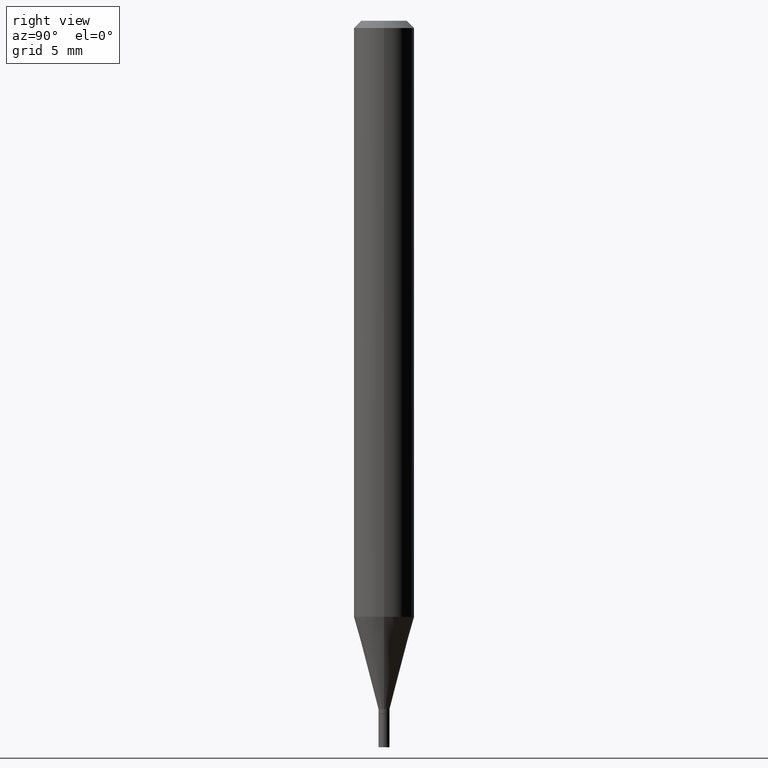
[diagram: clean part render]
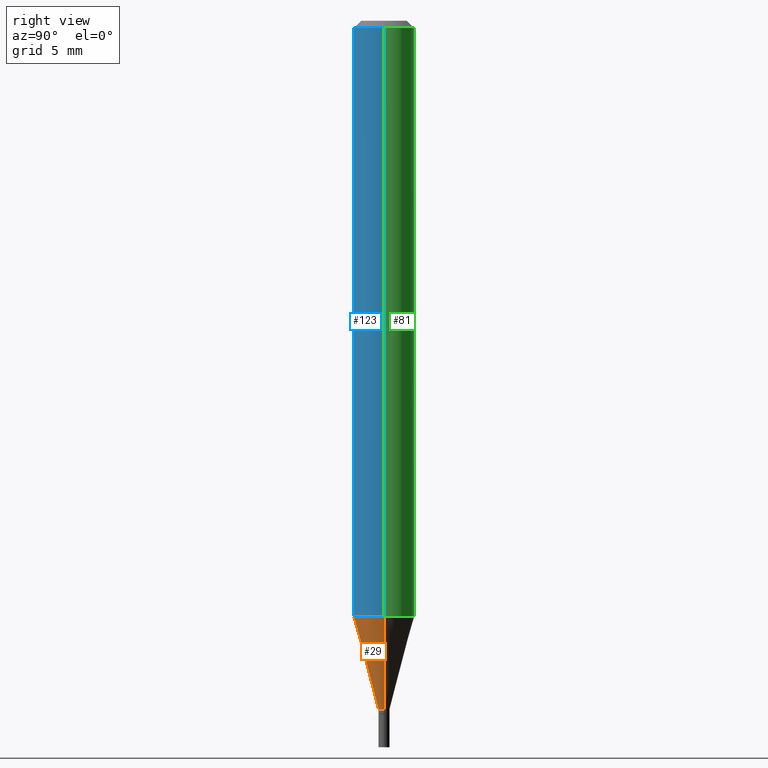
[diagram: same view with three faces highlighted in distinct colors, each labeled with its STEP entity id]
A machine part, right view with three faces highlighted in distinct colors.
Their STEP definitions:

[orange] entity #29 — the highlighted conical surface has half-angle 15 deg.
#6 = DIRECTION ( 'NONE',  ( -2.445468806185136597E-29, 3.491481338843145583E-15, 1.000000000000000000 ) ) ;
#7 = LINE ( 'NONE', #217, #105 ) ;
#29 = ADVANCED_FACE ( 'NONE', ( #364 ), #412, .T. ) ;
#44 = EDGE_CURVE ( 'NONE', #169, #85, #225, .T. ) ;
#65 = DIRECTION ( 'NONE',  ( -2.445468806185136597E-29, 3.491481338843145583E-15, 1.000000000000000000 ) ) ;
#68 = VECTOR ( 'NONE', #271, 39.37007874015748143 ) ;
#85 = VERTEX_POINT ( 'NONE', #255 ) ;
#92 = EDGE_CURVE ( 'NONE', #131, #169, #7, .T. ) ;
#95 = ORIENTED_EDGE ( 'NONE', *, *, #362, .T. ) ;
#105 = VECTOR ( 'NONE', #318, 39.37007874015748143 ) ;
#119 = DIRECTION ( 'NONE',  ( 1.000000000000000000, -6.982962677686254878E-15, 0.000000000000000000 ) ) ;
#122 = CIRCLE ( 'NONE', #260, 0.01149999999999992001 ) ;
#131 = VERTEX_POINT ( 'NONE', #296 ) ;
#156 = LINE ( 'NONE', #199, #68 ) ;
#169 = VERTEX_POINT ( 'NONE', #446 ) ;
#199 = CARTESIAN_POINT ( 'NONE',  ( 0.01149999999999992001, -5.041699053289501888E-15, -1.421000000000000263 ) ) ;
#202 = CARTESIAN_POINT ( 'NONE',  ( 3.009553868105685827E-29, -4.296845309233809826E-15, -1.230665408813987893 ) ) ;
#217 = CARTESIAN_POINT ( 'NONE',  ( -0.01149999999999992001, -4.879682567883699947E-15, -1.421000000000000263 ) ) ;
#221 = CARTESIAN_POINT ( 'NONE',  ( 3.475011173589079817E-29, -4.961394982496111147E-15, -1.421000000000000263 ) ) ;
#225 = CIRCLE ( 'NONE', #259, 0.06250000000000000000 ) ;
#255 = CARTESIAN_POINT ( 'NONE',  ( 0.06249999999999997918, -4.733280476589200707E-15, -1.230665408813987893 ) ) ;
#259 = AXIS2_PLACEMENT_3D ( 'NONE', #202, #65, #316 ) ;
#260 = AXIS2_PLACEMENT_3D ( 'NONE', #221, #6, #119 ) ;
#271 = DIRECTION ( 'NONE',  ( 0.2588190451025216277, 1.565188264969619995E-15, 0.9659258262890679791 ) ) ;
#296 = CARTESIAN_POINT ( 'NONE',  ( -0.01149999999999992001, -4.366219333633723973E-15, -1.421000000000000263 ) ) ;
#310 = EDGE_LOOP ( 'NONE', ( #349, #95, #394, #333 ) ) ;
#316 = DIRECTION ( 'NONE',  ( 1.000000000000000000, -6.982962677686262766E-15, 0.000000000000000000 ) ) ;
#318 = DIRECTION ( 'NONE',  ( -0.2588190451025216277, 5.211531920934551831E-15, 0.9659258262890679791 ) ) ;
#333 = ORIENTED_EDGE ( 'NONE', *, *, #44, .F. ) ;
#335 = CARTESIAN_POINT ( 'NONE',  ( 3.475011173589079817E-29, -4.961394982496111147E-15, -1.421000000000000263 ) ) ;
#349 = ORIENTED_EDGE ( 'NONE', *, *, #92, .F. ) ;
#359 = DIRECTION ( 'NONE',  ( 1.000000000000000000, -6.982962677686254878E-15, 0.000000000000000000 ) ) ;
#362 = EDGE_CURVE ( 'NONE', #131, #417, #122, .T. ) ;
#364 = FACE_OUTER_BOUND ( 'NONE', #310, .T. ) ;
#370 = AXIS2_PLACEMENT_3D ( 'NONE', #335, #390, #359 ) ;
#390 = DIRECTION ( 'NONE',  ( -2.445468806185136597E-29, 3.491481338843145583E-15, 1.000000000000000000 ) ) ;
#394 = ORIENTED_EDGE ( 'NONE', *, *, #440, .T. ) ;
#412 = CONICAL_SURFACE ( 'NONE', #370, 0.01149999999999992001, 0.2617993877991502960 ) ;
#417 = VERTEX_POINT ( 'NONE', #445 ) ;
#440 = EDGE_CURVE ( 'NONE', #417, #85, #156, .T. ) ;
#445 = CARTESIAN_POINT ( 'NONE',  ( 0.01149999999999992001, -5.041699053289501888E-15, -1.421000000000000263 ) ) ;
#446 = CARTESIAN_POINT ( 'NONE',  ( -0.06249999999999997918, -3.852756099383747210E-15, -1.230665408813987893 ) ) ;

[blue] entity #123 — the highlighted cylindrical surface (edge-blend (fillet) strip) has radius 1.5875 mm, axis along (-0, 0, 1).
#21 = EDGE_CURVE ( 'NONE', #85, #358, #251, .T. ) ;
#25 = ORIENTED_EDGE ( 'NONE', *, *, #419, .F. ) ;
#27 = AXIS2_PLACEMENT_3D ( 'NONE', #40, #436, #314 ) ;
#31 = DIRECTION ( 'NONE',  ( -2.445468806185136877E-29, 3.491481338843145188E-15, 1.000000000000000000 ) ) ;
#38 = LINE ( 'NONE', #262, #420 ) ;
#40 = CARTESIAN_POINT ( 'NONE',  ( 0.000000000000000000, 0.000000000000000000, 0.000000000000000000 ) ) ;
#43 = CYLINDRICAL_SURFACE ( 'NONE', #27, 0.06250000000000000000 ) ;
#44 = EDGE_CURVE ( 'NONE', #169, #85, #225, .T. ) ;
#58 = CIRCLE ( 'NONE', #312, 0.06250000000000000000 ) ;
#65 = DIRECTION ( 'NONE',  ( -2.445468806185136597E-29, 3.491481338843145583E-15, 1.000000000000000000 ) ) ;
#73 = DIRECTION ( 'NONE',  ( -2.445468806185136877E-29, 3.491481338843145188E-15, 1.000000000000000000 ) ) ;
#85 = VERTEX_POINT ( 'NONE', #255 ) ;
#109 = FACE_OUTER_BOUND ( 'NONE', #379, .T. ) ;
#118 = CARTESIAN_POINT ( 'NONE',  ( 0.06250000000000000000, -4.888073874380388472E-16, -0.01499999999999999944 ) ) ;
#123 = ADVANCED_FACE ( 'NONE', ( #109 ), #43, .T. ) ;
#144 = CARTESIAN_POINT ( 'NONE',  ( -0.06250000000000000000, -1.730519554808165837E-15, -0.01499999999999999944 ) ) ;
#150 = CARTESIAN_POINT ( 'NONE',  ( 3.668203209277705088E-31, -5.237222008264718399E-17, -0.01499999999999999944 ) ) ;
#169 = VERTEX_POINT ( 'NONE', #446 ) ;
#172 = EDGE_CURVE ( 'NONE', #169, #200, #38, .T. ) ;
#177 = VECTOR ( 'NONE', #31, 39.37007874015748143 ) ;
#200 = VERTEX_POINT ( 'NONE', #144 ) ;
#201 = ORIENTED_EDGE ( 'NONE', *, *, #44, .T. ) ;
#202 = CARTESIAN_POINT ( 'NONE',  ( 3.009553868105685827E-29, -4.296845309233809826E-15, -1.230665408813987893 ) ) ;
#225 = CIRCLE ( 'NONE', #259, 0.06250000000000000000 ) ;
#251 = LINE ( 'NONE', #345, #177 ) ;
#255 = CARTESIAN_POINT ( 'NONE',  ( 0.06249999999999997918, -4.733280476589200707E-15, -1.230665408813987893 ) ) ;
#259 = AXIS2_PLACEMENT_3D ( 'NONE', #202, #65, #316 ) ;
#262 = CARTESIAN_POINT ( 'NONE',  ( -0.06250000000000000000, 4.440892098500626162E-16, -3.074334431409316114E-30 ) ) ;
#300 = DIRECTION ( 'NONE',  ( 1.000000000000000000, -6.982962677686266711E-15, 0.000000000000000000 ) ) ;
#305 = ORIENTED_EDGE ( 'NONE', *, *, #172, .F. ) ;
#312 = AXIS2_PLACEMENT_3D ( 'NONE', #150, #411, #300 ) ;
#314 = DIRECTION ( 'NONE',  ( 1.000000000000000000, -6.982962677686266711E-15, 4.876176775795935793E-29 ) ) ;
#316 = DIRECTION ( 'NONE',  ( 1.000000000000000000, -6.982962677686262766E-15, 0.000000000000000000 ) ) ;
#345 = CARTESIAN_POINT ( 'NONE',  ( 0.06250000000000000000, -4.364351673553916694E-16, 3.047610484872459871E-30 ) ) ;
#358 = VERTEX_POINT ( 'NONE', #118 ) ;
#379 = EDGE_LOOP ( 'NONE', ( #305, #201, #415, #25 ) ) ;
#411 = DIRECTION ( 'NONE',  ( -2.445468806185136597E-29, 3.491481338843145583E-15, 1.000000000000000000 ) ) ;
#415 = ORIENTED_EDGE ( 'NONE', *, *, #21, .T. ) ;
#419 = EDGE_CURVE ( 'NONE', #200, #358, #58, .T. ) ;
#420 = VECTOR ( 'NONE', #73, 39.37007874015748143 ) ;
#436 = DIRECTION ( 'NONE',  ( -2.445468806185136597E-29, 3.491481338843145583E-15, 1.000000000000000000 ) ) ;
#446 = CARTESIAN_POINT ( 'NONE',  ( -0.06249999999999997918, -3.852756099383747210E-15, -1.230665408813987893 ) ) ;

[green] entity #81 — the highlighted cylindrical surface (edge-blend (fillet) strip) has radius 1.5875 mm, axis along (-0, 0, 1).
#9 = AXIS2_PLACEMENT_3D ( 'NONE', #168, #179, #438 ) ;
#14 = DIRECTION ( 'NONE',  ( 1.000000000000000000, -6.982962677686266711E-15, 0.000000000000000000 ) ) ;
#21 = EDGE_CURVE ( 'NONE', #85, #358, #251, .T. ) ;
#31 = DIRECTION ( 'NONE',  ( -2.445468806185136877E-29, 3.491481338843145188E-15, 1.000000000000000000 ) ) ;
#38 = LINE ( 'NONE', #262, #420 ) ;
#47 = DIRECTION ( 'NONE',  ( -2.445468806185136597E-29, 3.491481338843145583E-15, 1.000000000000000000 ) ) ;
#73 = DIRECTION ( 'NONE',  ( -2.445468806185136877E-29, 3.491481338843145188E-15, 1.000000000000000000 ) ) ;
#75 = CYLINDRICAL_SURFACE ( 'NONE', #9, 0.06250000000000000000 ) ;
#81 = ADVANCED_FACE ( 'NONE', ( #212 ), #75, .T. ) ;
#85 = VERTEX_POINT ( 'NONE', #255 ) ;
#96 = CIRCLE ( 'NONE', #193, 0.06250000000000000000 ) ;
#118 = CARTESIAN_POINT ( 'NONE',  ( 0.06250000000000000000, -4.888073874380388472E-16, -0.01499999999999999944 ) ) ;
#144 = CARTESIAN_POINT ( 'NONE',  ( -0.06250000000000000000, -1.730519554808165837E-15, -0.01499999999999999944 ) ) ;
#151 = AXIS2_PLACEMENT_3D ( 'NONE', #224, #47, #14 ) ;
#162 = ORIENTED_EDGE ( 'NONE', *, *, #384, .T. ) ;
#168 = CARTESIAN_POINT ( 'NONE',  ( 0.000000000000000000, 0.000000000000000000, 0.000000000000000000 ) ) ;
#169 = VERTEX_POINT ( 'NONE', #446 ) ;
#172 = EDGE_CURVE ( 'NONE', #169, #200, #38, .T. ) ;
#177 = VECTOR ( 'NONE', #31, 39.37007874015748143 ) ;
#179 = DIRECTION ( 'NONE',  ( -2.445468806185136597E-29, 3.491481338843145583E-15, 1.000000000000000000 ) ) ;
#193 = AXIS2_PLACEMENT_3D ( 'NONE', #334, #368, #295 ) ;
#197 = CIRCLE ( 'NONE', #151, 0.06250000000000000000 ) ;
#200 = VERTEX_POINT ( 'NONE', #144 ) ;
#212 = FACE_OUTER_BOUND ( 'NONE', #313, .T. ) ;
#224 = CARTESIAN_POINT ( 'NONE',  ( 3.668203209277705088E-31, -5.237222008264718399E-17, -0.01499999999999999944 ) ) ;
#236 = ORIENTED_EDGE ( 'NONE', *, *, #172, .T. ) ;
#251 = LINE ( 'NONE', #345, #177 ) ;
#255 = CARTESIAN_POINT ( 'NONE',  ( 0.06249999999999997918, -4.733280476589200707E-15, -1.230665408813987893 ) ) ;
#262 = CARTESIAN_POINT ( 'NONE',  ( -0.06250000000000000000, 4.440892098500626162E-16, -3.074334431409316114E-30 ) ) ;
#295 = DIRECTION ( 'NONE',  ( 1.000000000000000000, -6.982962677686262766E-15, 0.000000000000000000 ) ) ;
#308 = ORIENTED_EDGE ( 'NONE', *, *, #21, .F. ) ;
#313 = EDGE_LOOP ( 'NONE', ( #162, #236, #389, #308 ) ) ;
#334 = CARTESIAN_POINT ( 'NONE',  ( 3.009553868105685827E-29, -4.296845309233809826E-15, -1.230665408813987893 ) ) ;
#345 = CARTESIAN_POINT ( 'NONE',  ( 0.06250000000000000000, -4.364351673553916694E-16, 3.047610484872459871E-30 ) ) ;
#358 = VERTEX_POINT ( 'NONE', #118 ) ;
#368 = DIRECTION ( 'NONE',  ( -2.445468806185136597E-29, 3.491481338843145583E-15, 1.000000000000000000 ) ) ;
#384 = EDGE_CURVE ( 'NONE', #85, #169, #96, .T. ) ;
#389 = ORIENTED_EDGE ( 'NONE', *, *, #434, .F. ) ;
#420 = VECTOR ( 'NONE', #73, 39.37007874015748143 ) ;
#434 = EDGE_CURVE ( 'NONE', #358, #200, #197, .T. ) ;
#438 = DIRECTION ( 'NONE',  ( 1.000000000000000000, -6.982962677686266711E-15, 4.876176775795935793E-29 ) ) ;
#446 = CARTESIAN_POINT ( 'NONE',  ( -0.06249999999999997918, -3.852756099383747210E-15, -1.230665408813987893 ) ) ;